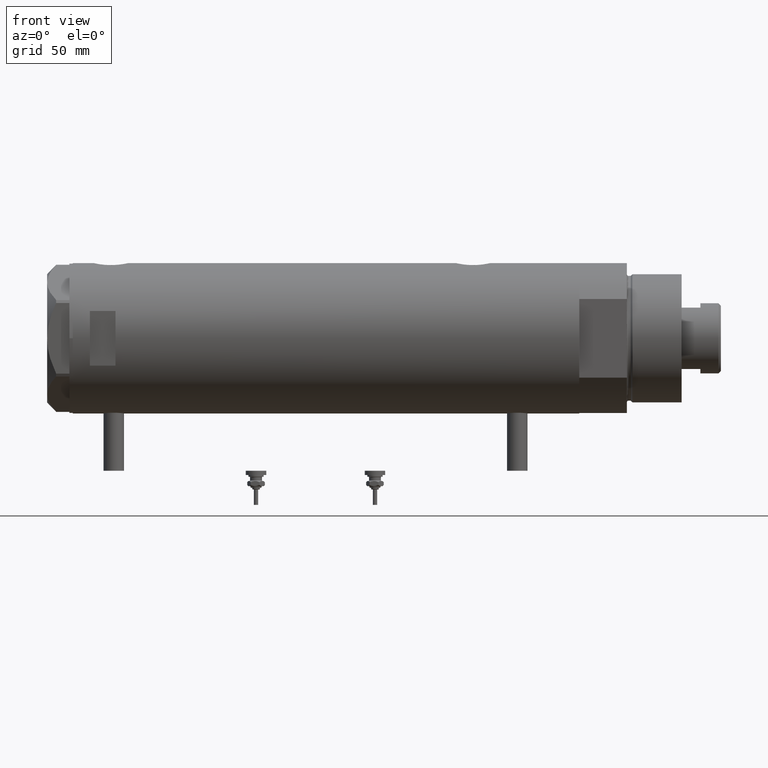
[diagram: clean part render]
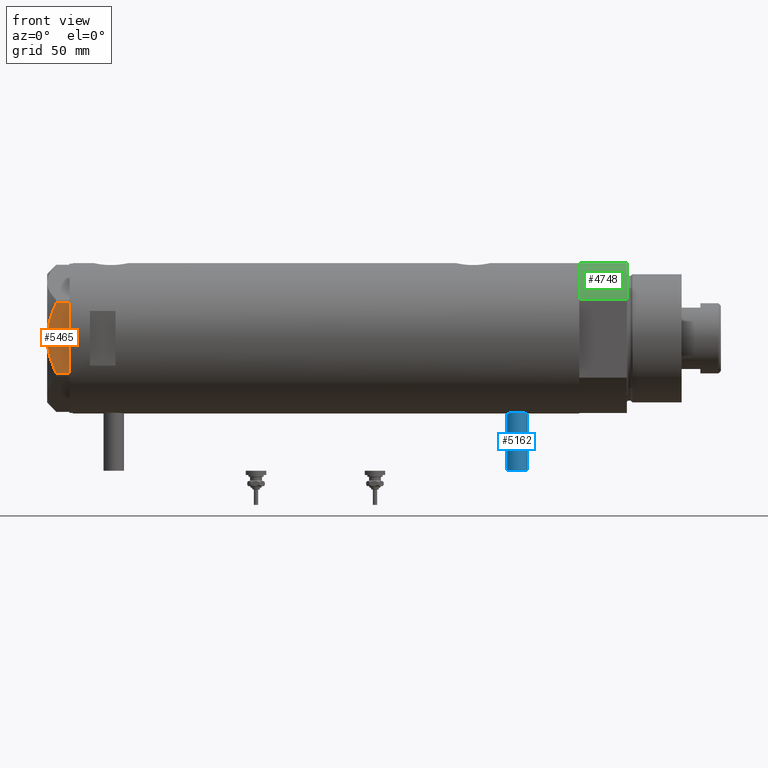
[diagram: same view with three faces highlighted in distinct colors, each labeled with its STEP entity id]
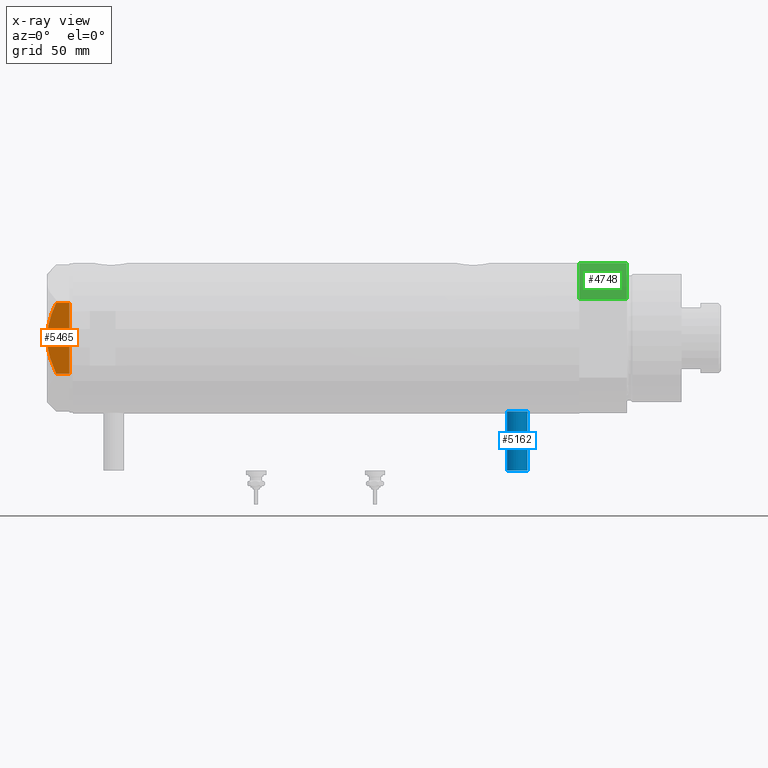
[diagram: x-ray of the same camera — body ghosted, the three highlighted faces saturated]
A machine part, front view with three faces highlighted in distinct colors.
The next image is the same camera in x-ray (body ghosted, the three faces saturated) — at least one of them is partly hidden behind the body in this view.
Their STEP definitions:

[orange] entity #5465 — the highlighted planar face has unit normal (-0, 1, 0).
#279 = VERTEX_POINT ( 'NONE', #5094 ) ;
#309 = CARTESIAN_POINT ( 'NONE',  ( -37.74999999999999289, -20.67497266190838090, 7.709124142616975206 ) ) ;
#379 = CARTESIAN_POINT ( 'NONE',  ( -37.75000000000000000, -4.503994958793054337, 12.74237531377022670 ) ) ;
#435 = VECTOR ( 'NONE', #471, 1000.000000000000000 ) ;
#471 = DIRECTION ( 'NONE',  ( 3.183713056926429451E-16, -1.000000000000000000, 0.000000000000000000 ) ) ;
#716 = VECTOR ( 'NONE', #5955, 1000.000000000000000 ) ;
#722 = CARTESIAN_POINT ( 'NONE',  ( -37.74999999999998579, -3.611424898442238351, 12.83826937481876662 ) ) ;
#745 = EDGE_CURVE ( 'NONE', #5996, #5497, #897, .T. ) ;
#897 = B_SPLINE_CURVE_WITH_KNOTS ( 'NONE', 3,
 ( #2574, #3036, #2035, #4825, #2140, #4346, #3068, #5850, #2627, #4489 ),
 .UNSPECIFIED., .F., .F.,
 ( 4, 2, 2, 2, 4 ),
 ( 0.05601050456479945983, 0.06138217239161374017, 0.06406800630502088034, 0.06675384021842802051, 0.07749717587205659508 ),
 .UNSPECIFIED. ) ;
#1197 = CARTESIAN_POINT ( 'NONE',  ( -37.75000000000000000, -19.05362936076134517, 8.470554105526115762 ) ) ;
#1231 = CARTESIAN_POINT ( 'NONE',  ( -37.75000000000000711, 21.79497266190837124, 13.00000000000000000 ) ) ;
#1350 = EDGE_CURVE ( 'NONE', #5497, #2097, #5381, .T. ) ;
#1646 = PLANE ( 'NONE',  #2665 ) ;
#1849 = ORIENTED_EDGE ( 'NONE', *, *, #745, .F. ) ;
#1895 = EDGE_CURVE ( 'NONE', #5946, #2097, #5228, .T. ) ;
#1933 = ORIENTED_EDGE ( 'NONE', *, *, #1350, .F. ) ;
#2035 = CARTESIAN_POINT ( 'NONE',  ( -37.75000000000000000, 17.42329546264825524, 9.202188366597436442 ) ) ;
#2097 = VERTEX_POINT ( 'NONE', #4959 ) ;
#2140 = CARTESIAN_POINT ( 'NONE',  ( -37.74999999999999289, 14.04433099034388199, 10.48027127384610857 ) ) ;
#2574 = CARTESIAN_POINT ( 'NONE',  ( -37.75000000000000711, 20.67497266190838090, 7.709124142616995634 ) ) ;
#2619 = EDGE_CURVE ( 'NONE', #279, #5946, #5068, .T. ) ;
#2627 = CARTESIAN_POINT ( 'NONE',  ( -37.75000000000000711, 3.615248338761639868, 13.00000000000000355 ) ) ;
#2665 = AXIS2_PLACEMENT_3D ( 'NONE', #1231, #3065, #4950 ) ;
#2888 = CARTESIAN_POINT ( 'NONE',  ( -37.74999999999999289, -20.67497266190837379, 13.00000000000000000 ) ) ;
#3036 = CARTESIAN_POINT ( 'NONE',  ( -37.75000000000001421, 19.06473524669327446, 8.482612457517163307 ) ) ;
#3058 = CARTESIAN_POINT ( 'NONE',  ( -37.75000000000000711, 20.67497266190838090, 7.709124142616995634 ) ) ;
#3065 = DIRECTION ( 'NONE',  ( 1.000000000000000000, 3.183713056926429451E-16, -0.000000000000000000 ) ) ;
#3066 = CARTESIAN_POINT ( 'NONE',  ( -37.74999999999999289, -12.34877760086739862, 11.06613894200179260 ) ) ;
#3068 = CARTESIAN_POINT ( 'NONE',  ( -37.74999999999999289, 11.46926194450821690, 11.30493988086503521 ) ) ;
#3106 = VECTOR ( 'NONE', #4767, 1000.000000000000000 ) ;
#3134 = CARTESIAN_POINT ( 'NONE',  ( -37.75000000000000000, -17.40390235304479205, 9.187919079516763787 ) ) ;
#3151 = CARTESIAN_POINT ( 'NONE',  ( -37.75000000000000711, 20.67497266190837024, 13.00000000000000000 ) ) ;
#3638 = EDGE_CURVE ( 'NONE', #5996, #279, #5868, .T. ) ;
#3905 = CARTESIAN_POINT ( 'NONE',  ( -37.75000000000000000, -1.201851678989727067E-14, 13.00000000000000000 ) ) ;
#3970 = CARTESIAN_POINT ( 'NONE',  ( -37.75000000000000000, -19.86857906850810096, 8.096480699986589258 ) ) ;
#4004 = CARTESIAN_POINT ( 'NONE',  ( -37.75000000000000000, -1.811728074765795338, 12.96720910498919999 ) ) ;
#4231 = ORIENTED_EDGE ( 'NONE', *, *, #2619, .T. ) ;
#4346 = CARTESIAN_POINT ( 'NONE',  ( -37.74999999999999289, 12.33018559404073855, 11.04557586999680474 ) ) ;
#4419 = ORIENTED_EDGE ( 'NONE', *, *, #1895, .T. ) ;
#4454 = CARTESIAN_POINT ( 'NONE',  ( -37.75000000000000000, -1.201851678989727067E-14, 13.00000000000000000 ) ) ;
#4477 = ORIENTED_EDGE ( 'NONE', *, *, #3638, .T. ) ;
#4487 = CARTESIAN_POINT ( 'NONE',  ( -37.74999999999999289, -7.161343005612803125, 12.36677985830371895 ) ) ;
#4489 = CARTESIAN_POINT ( 'NONE',  ( -37.75000000000000000, -1.201851678989727067E-14, 13.00000000000000000 ) ) ;
#4520 = CARTESIAN_POINT ( 'NONE',  ( -37.75000000000000000, -8.905753572404320195, 11.99914237172014886 ) ) ;
#4550 = CARTESIAN_POINT ( 'NONE',  ( -37.74999999999999289, -14.04742653794399132, 10.50092616350622698 ) ) ;
#4605 = CARTESIAN_POINT ( 'NONE',  ( -37.75000000000000711, 21.79497266190837124, 0.000000000000000000 ) ) ;
#4750 = CARTESIAN_POINT ( 'NONE',  ( -37.74999999999999289, -20.67497266190837379, 0.000000000000000000 ) ) ;
#4767 = DIRECTION ( 'NONE',  ( 0.000000000000000000, 0.000000000000000000, 1.000000000000000000 ) ) ;
#4825 = CARTESIAN_POINT ( 'NONE',  ( -37.75000000000000000, 14.89874562435961103, 10.17375260246623903 ) ) ;
#4950 = DIRECTION ( 'NONE',  ( -3.183713056926429451E-16, 1.000000000000000000, 0.000000000000000000 ) ) ;
#4959 = CARTESIAN_POINT ( 'NONE',  ( -37.74999999999999289, -20.67497266190838090, 7.709124142616975206 ) ) ;
#5068 = LINE ( 'NONE', #4605, #435 ) ;
#5094 = CARTESIAN_POINT ( 'NONE',  ( -37.75000000000000711, 20.67497266190837024, 0.000000000000000000 ) ) ;
#5228 = LINE ( 'NONE', #2888, #3106 ) ;
#5377 = CARTESIAN_POINT ( 'NONE',  ( -37.74999999999999289, -16.56731140591524110, 9.531835068628826235 ) ) ;
#5381 = B_SPLINE_CURVE_WITH_KNOTS ( 'NONE', 3,
 ( #4454, #5940, #4004, #722, #379, #4487, #4520, #3066, #4550, #5377, #3134, #1197, #3970, #309 ),
 .UNSPECIFIED., .F., .F.,
 ( 4, 2, 2, 2, 2, 2, 4 ),
 ( 0.07749717587205659508, 0.08017617902235898986, 0.08285518217266138463, 0.08821318847326617418, 0.09357119477387096373, 0.09625019792417334463, 0.09892920107447573941 ),
 .UNSPECIFIED. ) ;
#5440 = FACE_OUTER_BOUND ( 'NONE', #5931, .T. ) ;
#5465 = ADVANCED_FACE ( 'NONE', ( #5440 ), #1646, .F. ) ;
#5497 = VERTEX_POINT ( 'NONE', #3905 ) ;
#5850 = CARTESIAN_POINT ( 'NONE',  ( -37.75000000000000000, 7.143641079404827288, 12.47474846747316946 ) ) ;
#5868 = LINE ( 'NONE', #3151, #716 ) ;
#5931 = EDGE_LOOP ( 'NONE', ( #1849, #4477, #4231, #4419, #1933 ) ) ;
#5940 = CARTESIAN_POINT ( 'NONE',  ( -37.75000000000000000, -0.9015134592203577490, 13.00000000000000178 ) ) ;
#5946 = VERTEX_POINT ( 'NONE', #4750 ) ;
#5955 = DIRECTION ( 'NONE',  ( 0.000000000000000000, 0.000000000000000000, -1.000000000000000000 ) ) ;
#5996 = VERTEX_POINT ( 'NONE', #3058 ) ;

[blue] entity #5162 — the highlighted cylindrical surface (edge-blend (fillet) strip) has radius 6 mm, axis along (0, 0, 1).
#31 = VECTOR ( 'NONE', #1369, 1000.000000000000000 ) ;
#55 = DIRECTION ( 'NONE',  ( 1.000000000000000000, -0.000000000000000000, -0.000000000000000000 ) ) ;
#385 = ORIENTED_EDGE ( 'NONE', *, *, #1157, .T. ) ;
#387 = EDGE_CURVE ( 'NONE', #3149, #5557, #4755, .T. ) ;
#554 = VERTEX_POINT ( 'NONE', #3076 ) ;
#596 = AXIS2_PLACEMENT_3D ( 'NONE', #4276, #2784, #2901 ) ;
#1157 = EDGE_CURVE ( 'NONE', #2438, #3149, #5135, .T. ) ;
#1215 = CYLINDRICAL_SURFACE ( 'NONE', #3518, 6.000000000000005329 ) ;
#1286 = CIRCLE ( 'NONE', #5375, 6.000000000000005329 ) ;
#1369 = DIRECTION ( 'NONE',  ( 1.000000000000000000, -0.000000000000000000, -0.000000000000000000 ) ) ;
#1534 = ORIENTED_EDGE ( 'NONE', *, *, #387, .T. ) ;
#1609 = DIRECTION ( 'NONE',  ( -1.000000000000000000, 0.000000000000000000, 0.000000000000000000 ) ) ;
#2027 = VECTOR ( 'NONE', #55, 1000.000000000000000 ) ;
#2028 = CARTESIAN_POINT ( 'NONE',  ( -77.50000000000000000, 0.000000000000000000, -111.9000000000000057 ) ) ;
#2438 = VERTEX_POINT ( 'NONE', #5849 ) ;
#2490 = ORIENTED_EDGE ( 'NONE', *, *, #3242, .F. ) ;
#2784 = DIRECTION ( 'NONE',  ( -1.000000000000000000, 0.000000000000000000, 0.000000000000000000 ) ) ;
#2820 = EDGE_CURVE ( 'NONE', #2438, #554, #1286, .T. ) ;
#2901 = DIRECTION ( 'NONE',  ( 0.000000000000000000, 0.000000000000000000, 1.000000000000000000 ) ) ;
#3050 = CARTESIAN_POINT ( 'NONE',  ( -77.50000000000000000, 0.000000000000000000, -111.9000000000000057 ) ) ;
#3076 = CARTESIAN_POINT ( 'NONE',  ( -77.50000000000000000, 7.347880794884119736E-16, -105.8999999999999915 ) ) ;
#3149 = VERTEX_POINT ( 'NONE', #3166 ) ;
#3166 = CARTESIAN_POINT ( 'NONE',  ( -42.79999999999999716, 0.000000000000000000, -117.9000000000000057 ) ) ;
#3242 = EDGE_CURVE ( 'NONE', #554, #5557, #4659, .T. ) ;
#3250 = CARTESIAN_POINT ( 'NONE',  ( -77.50000000000000000, 0.000000000000000000, -117.9000000000000057 ) ) ;
#3518 = AXIS2_PLACEMENT_3D ( 'NONE', #3050, #5107, #3731 ) ;
#3731 = DIRECTION ( 'NONE',  ( 0.000000000000000000, 0.000000000000000000, -1.000000000000000000 ) ) ;
#3849 = ORIENTED_EDGE ( 'NONE', *, *, #2820, .F. ) ;
#4078 = EDGE_LOOP ( 'NONE', ( #2490, #3849, #385, #1534 ) ) ;
#4263 = CARTESIAN_POINT ( 'NONE',  ( -42.79999999999999716, 7.347880794884119736E-16, -105.8999999999999915 ) ) ;
#4276 = CARTESIAN_POINT ( 'NONE',  ( -42.79999999999999716, 0.000000000000000000, -111.9000000000000057 ) ) ;
#4659 = LINE ( 'NONE', #6005, #31 ) ;
#4755 = CIRCLE ( 'NONE', #596, 6.000000000000005329 ) ;
#5107 = DIRECTION ( 'NONE',  ( 1.000000000000000000, -0.000000000000000000, -0.000000000000000000 ) ) ;
#5135 = LINE ( 'NONE', #3250, #2027 ) ;
#5162 = ADVANCED_FACE ( 'NONE', ( #5830 ), #1215, .T. ) ;
#5215 = DIRECTION ( 'NONE',  ( 0.000000000000000000, 0.000000000000000000, 1.000000000000000000 ) ) ;
#5375 = AXIS2_PLACEMENT_3D ( 'NONE', #2028, #1609, #5215 ) ;
#5557 = VERTEX_POINT ( 'NONE', #4263 ) ;
#5830 = FACE_OUTER_BOUND ( 'NONE', #4078, .T. ) ;
#5849 = CARTESIAN_POINT ( 'NONE',  ( -77.50000000000000000, 0.000000000000000000, -117.9000000000000057 ) ) ;
#6005 = CARTESIAN_POINT ( 'NONE',  ( -77.50000000000000000, 7.347880794884122694E-16, -105.8999999999999915 ) ) ;

[green] entity #4748 — the highlighted cylindrical surface (partial cylindrical patch) has radius 44 mm, axis along (-1, -0, 0).
#232 = LINE ( 'NONE', #4374, #4294 ) ;
#283 = CYLINDRICAL_SURFACE ( 'NONE', #1304, 44.00000000000000000 ) ;
#488 = EDGE_CURVE ( 'NONE', #3708, #1826, #2323, .T. ) ;
#675 = FACE_OUTER_BOUND ( 'NONE', #2870, .T. ) ;
#790 = ORIENTED_EDGE ( 'NONE', *, *, #4975, .T. ) ;
#1035 = CARTESIAN_POINT ( 'NONE',  ( -23.01629857296780557, -37.50000000000000000, 27.89999999999999858 ) ) ;
#1210 = DIRECTION ( 'NONE',  ( -0.000000000000000000, -0.000000000000000000, -1.000000000000000000 ) ) ;
#1304 = AXIS2_PLACEMENT_3D ( 'NONE', #2114, #1210, #4500 ) ;
#1633 = DIRECTION ( 'NONE',  ( 1.000000000000000000, 0.000000000000000000, 0.000000000000000000 ) ) ;
#1672 = CARTESIAN_POINT ( 'NONE',  ( 0.000000000000000000, 0.000000000000000000, 0.000000000000000000 ) ) ;
#1781 = CIRCLE ( 'NONE', #5967, 44.00000000000000000 ) ;
#1826 = VERTEX_POINT ( 'NONE', #1035 ) ;
#1827 = EDGE_CURVE ( 'NONE', #3708, #5525, #2414, .T. ) ;
#2078 = ORIENTED_EDGE ( 'NONE', *, *, #1827, .T. ) ;
#2114 = CARTESIAN_POINT ( 'NONE',  ( 0.000000000000000000, 0.000000000000000000, 27.89999999999999858 ) ) ;
#2321 = ORIENTED_EDGE ( 'NONE', *, *, #488, .F. ) ;
#2323 = CIRCLE ( 'NONE', #3951, 44.00000000000000000 ) ;
#2414 = LINE ( 'NONE', #3711, #4480 ) ;
#2588 = ORIENTED_EDGE ( 'NONE', *, *, #5927, .T. ) ;
#2864 = CARTESIAN_POINT ( 'NONE',  ( 0.000000000000000000, 0.000000000000000000, 27.89999999999999858 ) ) ;
#2870 = EDGE_LOOP ( 'NONE', ( #2321, #2078, #790, #2588 ) ) ;
#2889 = DIRECTION ( 'NONE',  ( 1.000000000000000000, 0.000000000000000000, 0.000000000000000000 ) ) ;
#3055 = DIRECTION ( 'NONE',  ( 0.000000000000000000, 0.000000000000000000, 1.000000000000000000 ) ) ;
#3256 = DIRECTION ( 'NONE',  ( -0.000000000000000000, -0.000000000000000000, -1.000000000000000000 ) ) ;
#3678 = CARTESIAN_POINT ( 'NONE',  ( -44.00000000000000000, 0.000000000000000000, 27.89999999999999858 ) ) ;
#3708 = VERTEX_POINT ( 'NONE', #3678 ) ;
#3711 = CARTESIAN_POINT ( 'NONE',  ( -44.00000000000000000, 0.000000000000000000, 27.89999999999999858 ) ) ;
#3951 = AXIS2_PLACEMENT_3D ( 'NONE', #2864, #5291, #2889 ) ;
#4294 = VECTOR ( 'NONE', #5713, 1000.000000000000000 ) ;
#4374 = CARTESIAN_POINT ( 'NONE',  ( -23.01629857296780557, -37.50000000000000000, 0.000000000000000000 ) ) ;
#4480 = VECTOR ( 'NONE', #3256, 1000.000000000000000 ) ;
#4500 = DIRECTION ( 'NONE',  ( -1.000000000000000000, 0.000000000000000000, 0.000000000000000000 ) ) ;
#4748 = ADVANCED_FACE ( 'NONE', ( #675 ), #283, .T. ) ;
#4853 = CARTESIAN_POINT ( 'NONE',  ( -44.00000000000000000, 0.000000000000000000, 0.000000000000000000 ) ) ;
#4862 = VERTEX_POINT ( 'NONE', #5105 ) ;
#4975 = EDGE_CURVE ( 'NONE', #5525, #4862, #1781, .T. ) ;
#5105 = CARTESIAN_POINT ( 'NONE',  ( -23.01629857296780557, -37.50000000000000000, 0.000000000000000000 ) ) ;
#5291 = DIRECTION ( 'NONE',  ( 0.000000000000000000, 0.000000000000000000, 1.000000000000000000 ) ) ;
#5525 = VERTEX_POINT ( 'NONE', #4853 ) ;
#5713 = DIRECTION ( 'NONE',  ( -0.000000000000000000, -0.000000000000000000, 1.000000000000000000 ) ) ;
#5927 = EDGE_CURVE ( 'NONE', #4862, #1826, #232, .T. ) ;
#5967 = AXIS2_PLACEMENT_3D ( 'NONE', #1672, #3055, #1633 ) ;